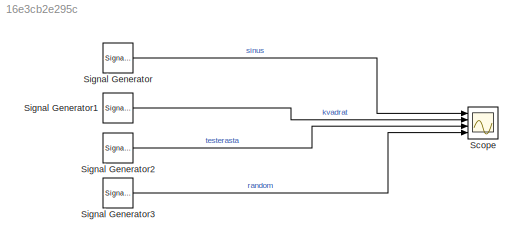
MODEL slx_16e3cb2e295c
KIND model
CONFIG AbsTol = auto
CONFIG EnableMultiTasking = off
CONFIG FixedStep = 0.001
CONFIG MaxStep = auto
CONFIG MinStep = auto
CONFIG RelTol = 1e-3
CONFIG SampleTimeConstraint = Unconstrained
CONFIG Solver = VariableStepAuto
CONFIG SolverName = VariableStepAuto
CONFIG StartTime = 0.0
CONFIG StopTime = 100
BLOCK [Scope] Scope
  Floating = off
  NumInputPorts = 4
  Ports = [4]
  ScopeSpecificationString = Simulink.scopes.TimeScopeBlockCfg('CurrentConfiguration', extmgr.ConfigurationSet(extmgr.Configuration('Core','General UI',true),extmgr.Configuration('Core','Source UI',true),extmgr.Configuration('Sources','WiredSimulink',true),extmgr.Configuration('Visuals','Time Domain',true,'SerializedDisplays',{struct('MinYLimReal','-12.5','MaxYLimReal','12.5','YLabelReal','','MinYLimMag','0.00000','MaxYLimMag...<+3413ch>
BLOCK [SignalGenerator] Signal Generator
  Frequency = 0.2
  Ports = [0, 1]
  Units = rad/sec
BLOCK [SignalGenerator] Signal Generator1
  Frequency = 0.2
  Ports = [0, 1]
  Units = rad/sec
  WaveForm = square
BLOCK [SignalGenerator] Signal Generator2
  Frequency = 0.2
  Ports = [0, 1]
  Units = rad/sec
  WaveForm = sawtooth
BLOCK [SignalGenerator] Signal Generator3
  Frequency = 0.2
  Ports = [0, 1]
  Units = rad/sec
  WaveForm = random
LINE Signal Generator1:1 -> Scope:2
LINE Signal Generator2:1 -> Scope:3
LINE Signal Generator3:1 -> Scope:4
LINE Signal Generator:1 -> Scope:1
